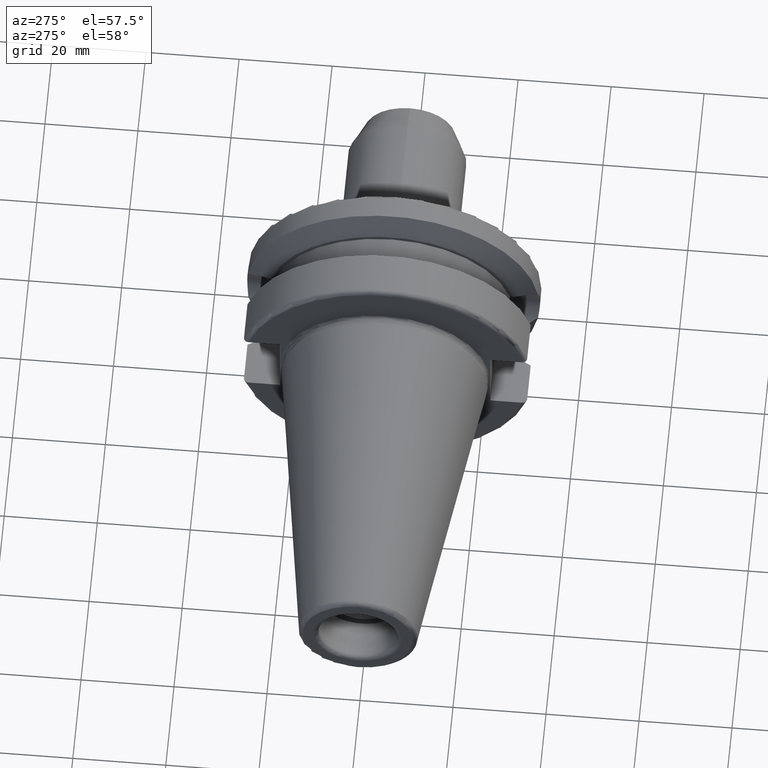
[diagram: clean part render]
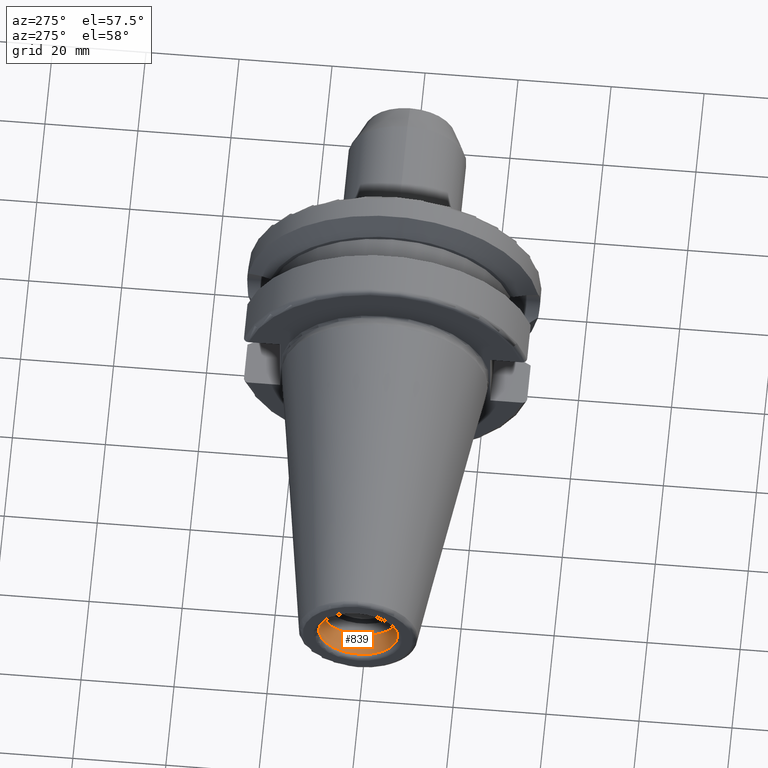
[diagram: same view with one face highlighted and labeled with its STEP entity id]
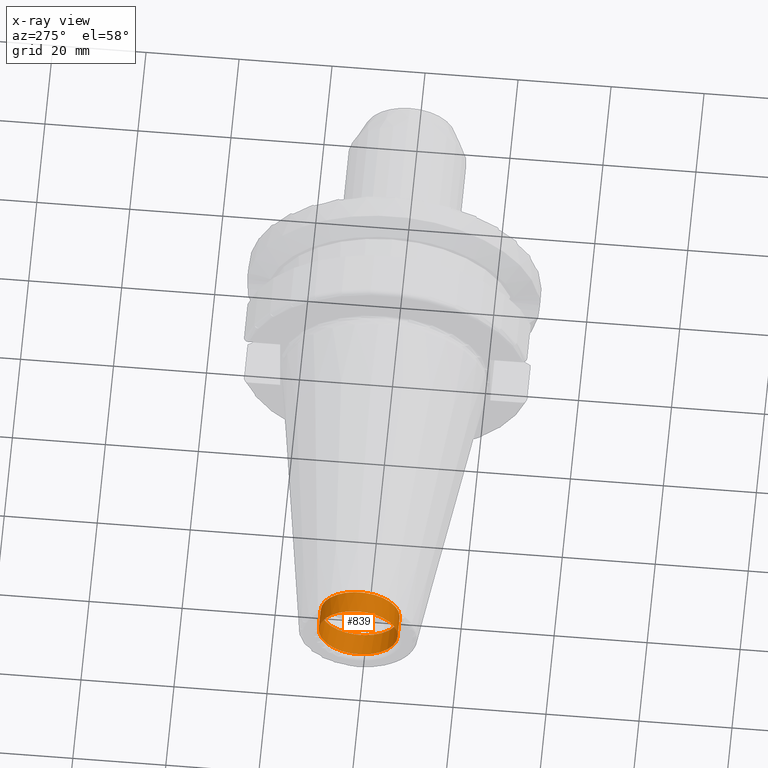
[diagram: x-ray of the same camera — body ghosted, the highlighted face saturated]
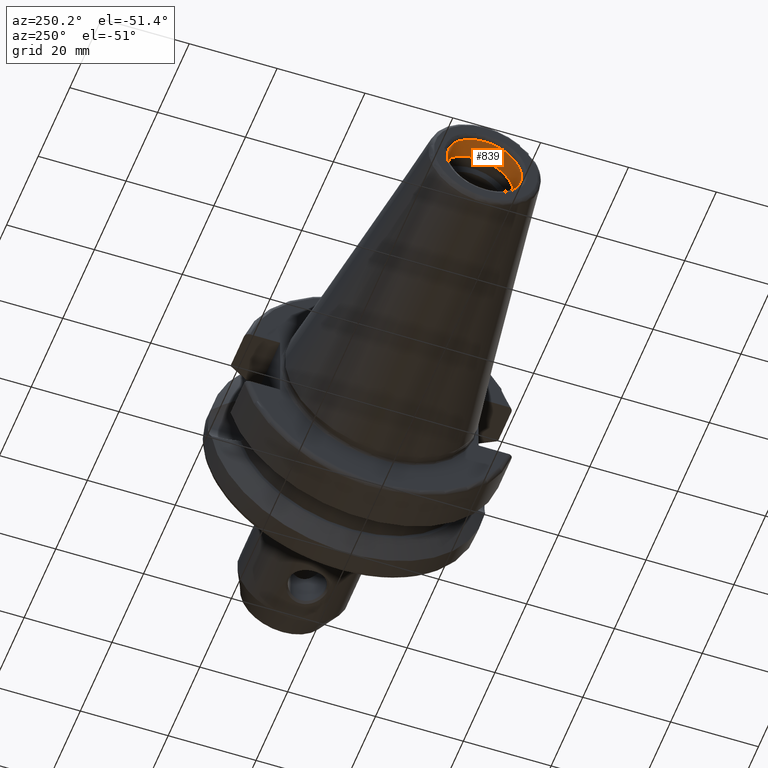
[diagram: same view with one face highlighted and labeled with its STEP entity id]
A machine part, auxiliary view. The second image highlights one B-rep face of the part: STEP entity #839.
The next image is the same camera in x-ray: the body ghosted, the highlighted face saturated — about 0% of this face is hidden behind the body in this view.
A second angle (auxiliary view) of the same face is appended — the face is thin or edge-on in the first view.
In plain terms, the highlighted cylindrical surface (bore or boss wall) has radius 8.5 mm, axis along (1, 0, 0).
Its self-contained STEP definition (entity closure, byte-faithful):
#108=CIRCLE('',#959,8.5);
#109=CIRCLE('',#961,8.5);
#110=CIRCLE('',#962,8.5);
#127=CYLINDRICAL_SURFACE('',#960,8.5);
#174=FACE_OUTER_BOUND('',#229,.T.);
#229=EDGE_LOOP('',(#780,#781,#782,#783,#784));
#297=LINE('',#1748,#343);
#343=VECTOR('',#1206,8.5);
#419=VERTEX_POINT('',#1743);
#420=VERTEX_POINT('',#1747);
#421=VERTEX_POINT('',#1749);
#540=EDGE_CURVE('',#419,#419,#108,.T.);
#541=EDGE_CURVE('',#419,#420,#297,.T.);
#542=EDGE_CURVE('',#421,#420,#109,.T.);
#543=EDGE_CURVE('',#420,#421,#110,.T.);
#780=ORIENTED_EDGE('',*,*,#540,.T.);
#781=ORIENTED_EDGE('',*,*,#541,.T.);
#782=ORIENTED_EDGE('',*,*,#542,.F.);
#783=ORIENTED_EDGE('',*,*,#543,.F.);
#784=ORIENTED_EDGE('',*,*,#541,.F.);
#839=ADVANCED_FACE('',(#174),#127,.F.);
#959=AXIS2_PLACEMENT_3D('',#1745,#1202,#1203);
#960=AXIS2_PLACEMENT_3D('',#1746,#1204,#1205);
#961=AXIS2_PLACEMENT_3D('',#1750,#1207,#1208);
#962=AXIS2_PLACEMENT_3D('',#1751,#1209,#1210);
#1202=DIRECTION('center_axis',(1.,0.,0.));
#1203=DIRECTION('ref_axis',(0.,0.,-1.));
#1204=DIRECTION('center_axis',(1.,0.,0.));
#1205=DIRECTION('ref_axis',(0.,1.,0.));
#1206=DIRECTION('',(-1.,0.,0.));
#1207=DIRECTION('center_axis',(1.,0.,0.));
#1208=DIRECTION('ref_axis',(0.,0.,-1.));
#1209=DIRECTION('center_axis',(1.,0.,0.));
#1210=DIRECTION('ref_axis',(0.,0.,-1.));
#1743=CARTESIAN_POINT('',(-59.5196152422707,-8.5,-1.04094977927525E-15));
#1745=CARTESIAN_POINT('Origin',(-59.5196152422707,0.,0.));
#1746=CARTESIAN_POINT('Origin',(-61.9598076211353,0.,0.));
#1747=CARTESIAN_POINT('',(-64.4,-8.5,-1.04094977927525E-15));
#1748=CARTESIAN_POINT('',(-61.9598076211353,-8.5,-1.04094977927525E-15));
#1749=CARTESIAN_POINT('',(-64.4,-1.04094977927525E-15,8.5));
#1750=CARTESIAN_POINT('Origin',(-64.4,0.,0.));
#1751=CARTESIAN_POINT('Origin',(-64.4,0.,0.));